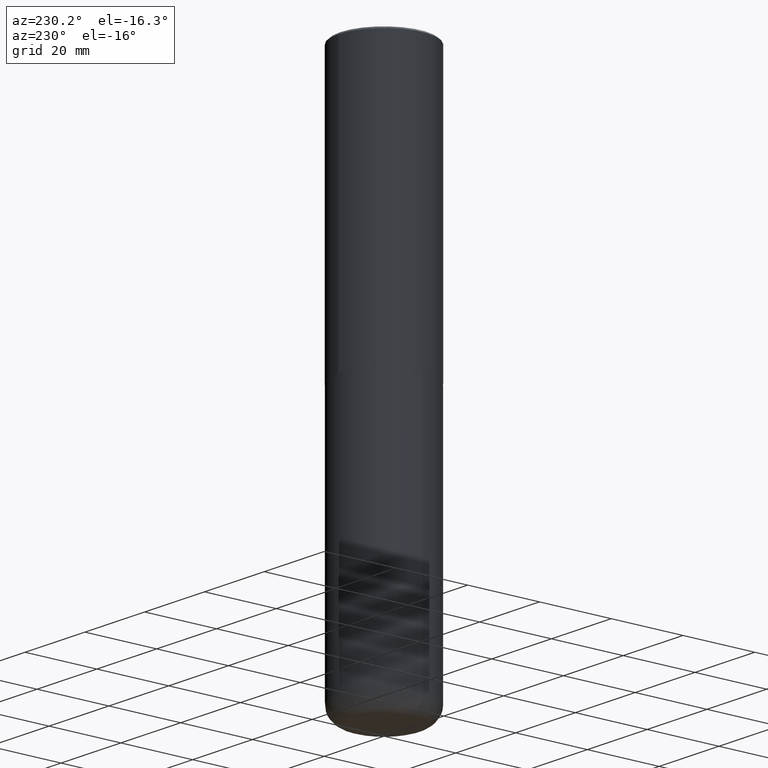
[diagram: clean part render]
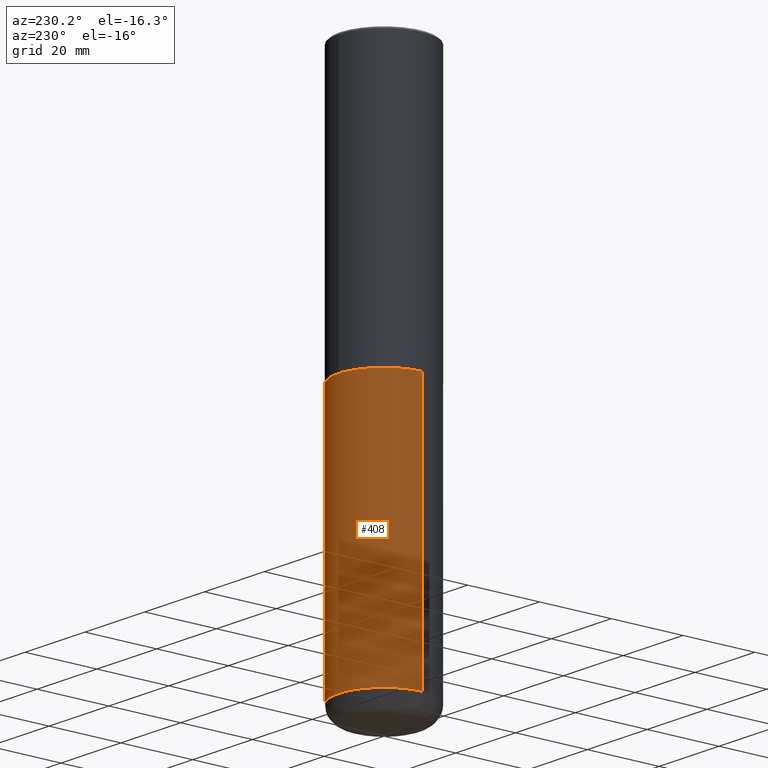
[diagram: same view with one face highlighted and labeled with its STEP entity id]
A machine part, auxiliary view. The second image highlights one B-rep face of the part: STEP entity #408.
In plain terms, the highlighted cylindrical surface (partial cylindrical patch) has radius 12.7 mm, axis along (-0, 0, 1).
Its self-contained STEP definition (entity closure, byte-faithful):
#16 = CARTESIAN_POINT ( 'NONE',  ( 0.5000000000000000000, -1.396592535537257129E-14, -3.000000000000000444 ) ) ;
#28 = CARTESIAN_POINT ( 'NONE',  ( -0.5000000000000000000, -1.182726161880355609E-14, -3.000000000000000444 ) ) ;
#34 = ORIENTED_EDGE ( 'NONE', *, *, #196, .T. ) ;
#51 = VERTEX_POINT ( 'NONE', #300 ) ;
#53 = DIRECTION ( 'NONE',  ( 1.000000000000000000, -6.982962677686266711E-15, 4.876176775795935793E-29 ) ) ;
#76 = CIRCLE ( 'NONE', #310, 0.5000000000000000000 ) ;
#83 = DIRECTION ( 'NONE',  ( -2.445468806185136877E-29, 3.491481338843145188E-15, 1.000000000000000000 ) ) ;
#84 = DIRECTION ( 'NONE',  ( 1.000000000000000000, -6.982962677686266711E-15, 0.000000000000000000 ) ) ;
#89 = CARTESIAN_POINT ( 'NONE',  ( 1.420817376393564695E-28, -2.028550657867867926E-14, -5.810000000000000497 ) ) ;
#91 = LINE ( 'NONE', #345, #229 ) ;
#112 = VERTEX_POINT ( 'NONE', #272 ) ;
#115 = CARTESIAN_POINT ( 'NONE',  ( 0.5000000000000000000, -3.491481338843133355E-15, 2.438088387897967896E-29 ) ) ;
#144 = DIRECTION ( 'NONE',  ( -2.445468806185136597E-29, 3.491481338843145583E-15, 1.000000000000000000 ) ) ;
#150 = LINE ( 'NONE', #115, #247 ) ;
#151 = DIRECTION ( 'NONE',  ( 1.000000000000000000, -6.982962677686270655E-15, 0.000000000000000000 ) ) ;
#159 = EDGE_CURVE ( 'NONE', #112, #51, #76, .T. ) ;
#167 = ORIENTED_EDGE ( 'NONE', *, *, #317, .F. ) ;
#196 = EDGE_CURVE ( 'NONE', #51, #256, #91, .T. ) ;
#203 = FACE_OUTER_BOUND ( 'NONE', #291, .T. ) ;
#219 = DIRECTION ( 'NONE',  ( -2.445468806185136877E-29, 3.491481338843145188E-15, 1.000000000000000000 ) ) ;
#229 = VECTOR ( 'NONE', #219, 39.37007874015748143 ) ;
#247 = VECTOR ( 'NONE', #83, 39.37007874015748143 ) ;
#256 = VERTEX_POINT ( 'NONE', #28 ) ;
#272 = CARTESIAN_POINT ( 'NONE',  ( 0.5000000000000000000, -2.377698791752181577E-14, -5.810000000000000497 ) ) ;
#287 = AXIS2_PLACEMENT_3D ( 'NONE', #337, #144, #53 ) ;
#288 = DIRECTION ( 'NONE',  ( -2.445468806185136597E-29, 3.491481338843145583E-15, 1.000000000000000000 ) ) ;
#291 = EDGE_LOOP ( 'NONE', ( #361, #34, #167, #336 ) ) ;
#300 = CARTESIAN_POINT ( 'NONE',  ( -0.5000000000000000000, -1.673279289987817518E-14, -5.810000000000000497 ) ) ;
#307 = DIRECTION ( 'NONE',  ( -2.445468806185136597E-29, 3.491481338843145583E-15, 1.000000000000000000 ) ) ;
#310 = AXIS2_PLACEMENT_3D ( 'NONE', #89, #288, #151 ) ;
#317 = EDGE_CURVE ( 'NONE', #342, #256, #347, .T. ) ;
#336 = ORIENTED_EDGE ( 'NONE', *, *, #357, .F. ) ;
#337 = CARTESIAN_POINT ( 'NONE',  ( 0.000000000000000000, 0.000000000000000000, 0.000000000000000000 ) ) ;
#342 = VERTEX_POINT ( 'NONE', #16 ) ;
#345 = CARTESIAN_POINT ( 'NONE',  ( -0.5000000000000000000, 3.552713678800500929E-15, -2.459467545127452891E-29 ) ) ;
#347 = CIRCLE ( 'NONE', #400, 0.5000000000000000000 ) ;
#348 = CARTESIAN_POINT ( 'NONE',  ( 7.336406418555409790E-29, -1.047444401652943635E-14, -3.000000000000000444 ) ) ;
#357 = EDGE_CURVE ( 'NONE', #112, #342, #150, .T. ) ;
#361 = ORIENTED_EDGE ( 'NONE', *, *, #159, .T. ) ;
#400 = AXIS2_PLACEMENT_3D ( 'NONE', #348, #307, #84 ) ;
#408 = ADVANCED_FACE ( 'NONE', ( #203 ), #416, .T. ) ;
#416 = CYLINDRICAL_SURFACE ( 'NONE', #287, 0.5000000000000000000 ) ;